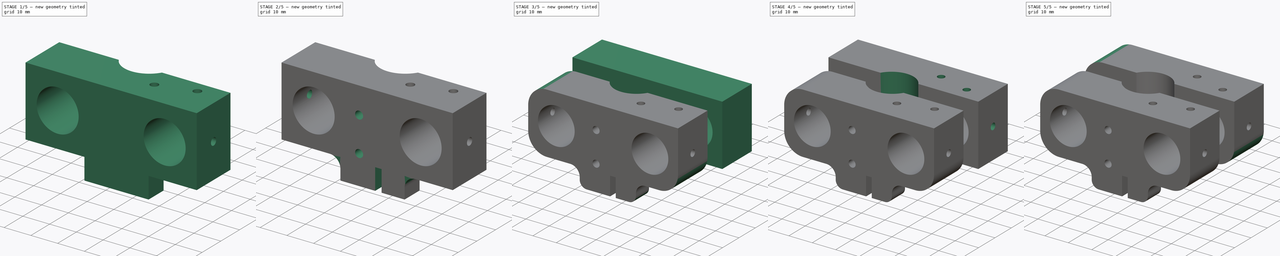
[diagram: build sequence overview — one tinted view per stage of 5, left to right]
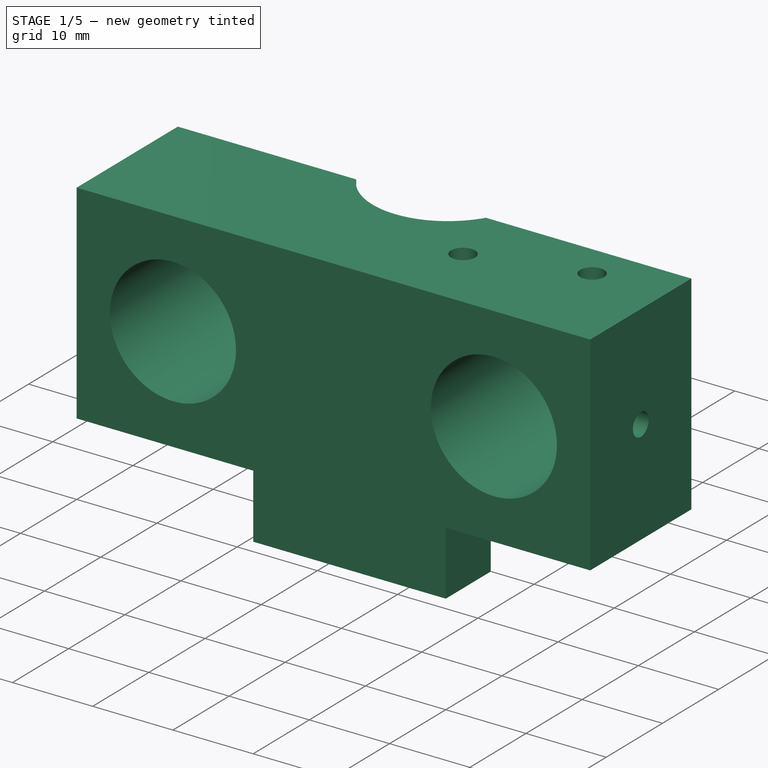
[diagram: stage 1 of 5 — iso view after this stage's code; geometry added in this stage tinted green]
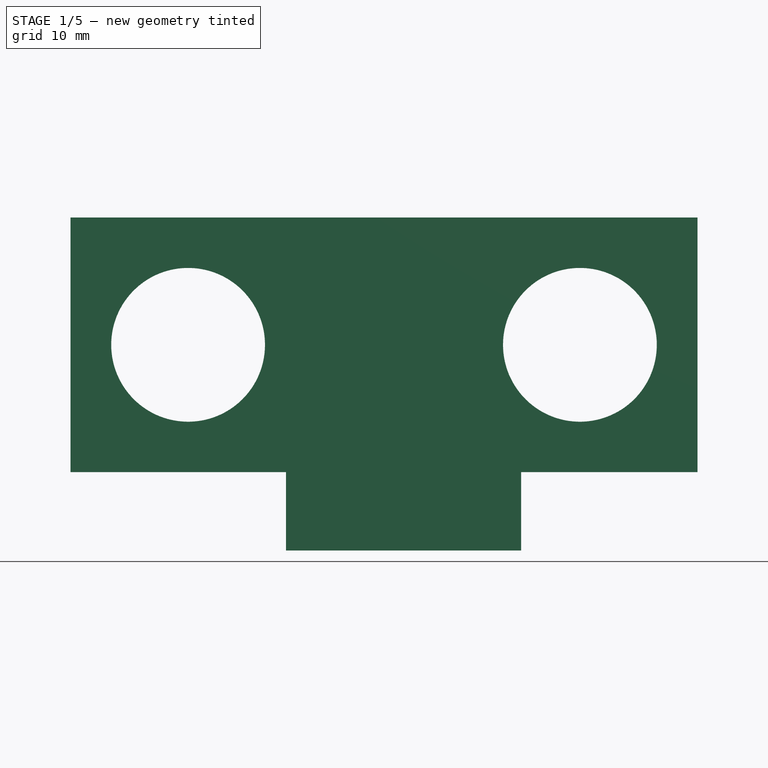
[diagram: stage 1 of 5 — front view after this stage's code; geometry added in this stage tinted green]
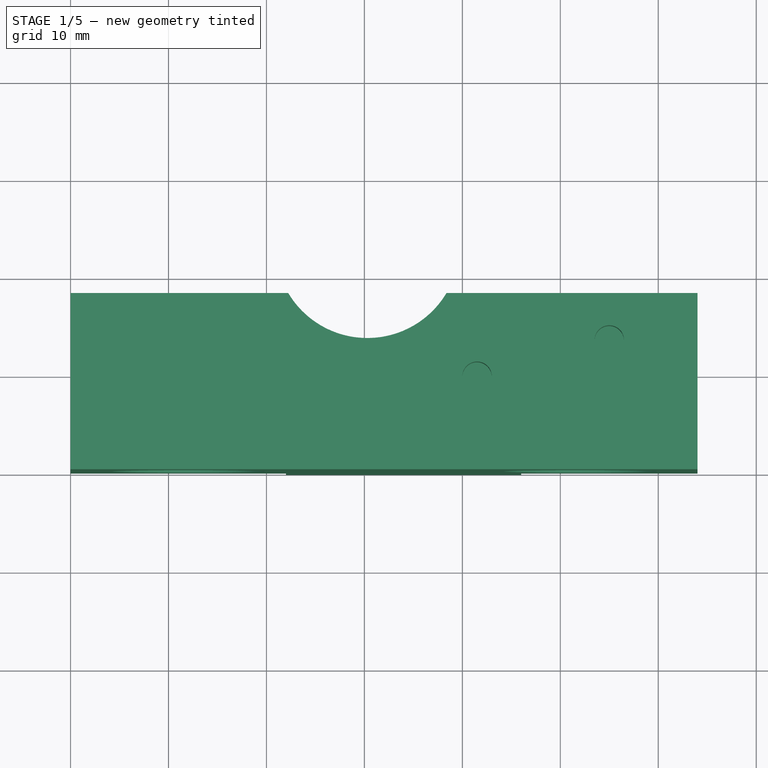
[diagram: stage 1 of 5 — top view after this stage's code; geometry added in this stage tinted green]
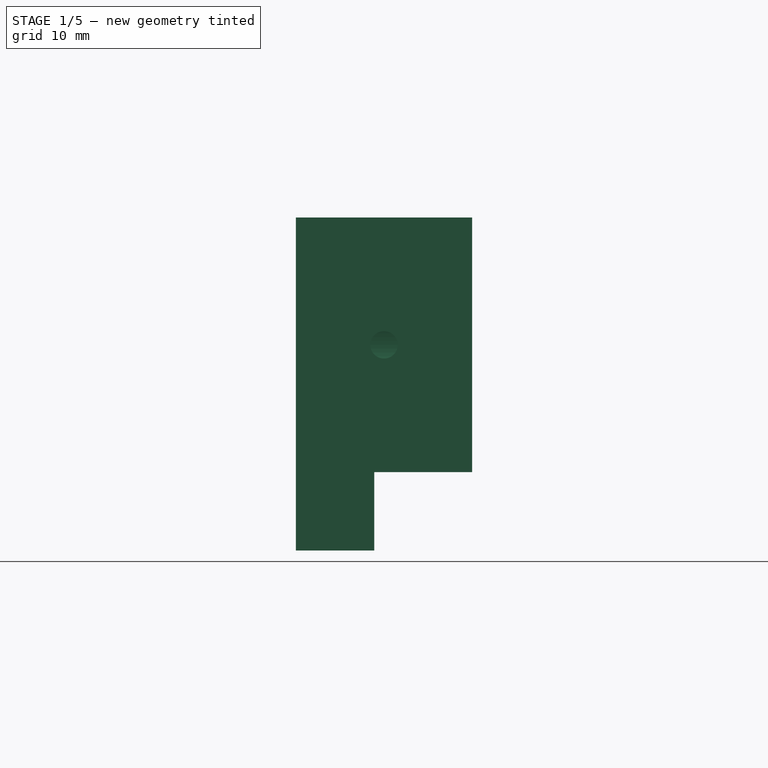
[diagram: stage 1 of 5 — right view after this stage's code; geometry added in this stage tinted green]
FCSTD DOCUMENT  (FreeCAD 0.16R6706 (Git))
Label: new-nozzle-cr
License: All rights reserved
LicenseURL: http://en.wikipedia.org/wiki/All_rights_reserved
objects: Sketcher::SketchObject×18, PartDesign::Pocket×16, PartDesign::Fillet×8, Part::Box×2, PartDesign::Pad×2, App::DocumentObjectGroup×2, Part::Feature×1
note: 65 computed .brp shape members not serialized (recipe doc carries the construction recipe); baked Part::Feature solids carry a one-line shape summary decoded from their .brp

FEATURE [Part::Box] Box  label="left"
  Height = 26
  Length = 64
  Width = 18
FEATURE [Sketcher::SketchObject] Sketch009  label="bearing cutoutL"
  Placement = pos=(0,0,0) rot=(1,0,0;1.5708rad)
  Support = -> Box [Face3]
  sketch-geometry (2):
    g0: Circle CenterX=12 CenterY=13 CenterZ=0 NormalX=0 NormalY=0 NormalZ=1 Radius=7.85
    g1: Circle CenterX=52 CenterY=13 CenterZ=0 NormalX=0 NormalY=0 NormalZ=1 Radius=7.85
  constraints (6):
    c: Equal(g1,g0)
    c: Radius(g0) = 7.85
    c: Distance(g0,g1) = 40
    c: DistanceY(g-1,g0) = 13
    c: DistanceY(g-1,g1) = 13
    c: DistanceX(g0) = 12
FEATURE [PartDesign::Pocket] Pocket  label="bearing cut L"
  Length = 5
  Sketch = -> Sketch009
  Type = 1
FEATURE [Sketcher::SketchObject] Sketch  label="left belt pad btm sk"
  Placement = pos=(0,0,0) rot=(1,0,0;3.14159rad)
  Support = -> Pocket [Face5]
  sketch-geometry (4):
    g0: LineSegment StartX=22 StartY=0 StartZ=0 EndX=46 EndY=0 EndZ=0
    g1: LineSegment StartX=46 StartY=0 StartZ=0 EndX=46 EndY=-8 EndZ=0
    g2: LineSegment StartX=46 StartY=-8 StartZ=0 EndX=22 EndY=-8 EndZ=0
    g3: LineSegment StartX=22 StartY=-8 StartZ=0 EndX=22 EndY=0 EndZ=0
  constraints (12):
    c: Coincident(g0,g1)
    c: Coincident(g1,g2)
    c: Coincident(g2,g3)
    c: Coincident(g3,g0)
    c: Horizontal(g0)
    c: Horizontal(g2)
    c: Vertical(g1)
    c: Vertical(g3)
    c: DistanceY(g0,g-1) = 0
    c: DistanceX(g0) = 22
    c: Distance(g2) = 24
    c: DistanceY(g1) = -8
FEATURE [PartDesign::Pad] Pad  label="left belt pad btm"
  Length = 8
  Length2 = 100
  Sketch = -> Sketch
  Type = 0
FEATURE [Sketcher::SketchObject] Sketch016  label="leveler hole r"
  Placement = pos=(0,0,26) rot=(0,0,1;0rad)
  Support = -> Pad [Face3]
  sketch-geometry (1):
    g0: Circle CenterX=30.3 CenterY=22.8 CenterZ=0 NormalX=0 NormalY=0 NormalZ=1 Radius=9.4
  constraints (3):
    c: Radius(g0) = 9.4
    c: DistanceX(g-2,g0) = 30.3
    c: DistanceY(g0) = 22.8
FEATURE [PartDesign::Pocket] Pocket002  label="leveler cut r"
  Length = 5
  Sketch = -> Sketch016
  Type = 1
FEATURE [Part::Feature] Part__Feature  label="plate"
  Placement = pos=(55,23,28) rot=(-1,0,0;1.5708rad)
  shape: bbox 38.1 x 38.1 x 2.286 mm, 52 faces (baked)
FEATURE [Sketcher::SketchObject] Sketch018  label="extruder mnt r sk"
  Placement = pos=(0,0,26) rot=(0,0,1;0rad)
  Support = -> Pocket002 [Face3]
  sketch-geometry (2):
    g0: Circle CenterX=41.5 CenterY=9.5 CenterZ=0 NormalX=0 NormalY=0 NormalZ=1 Radius=1.5
    g1: Circle CenterX=55 CenterY=13.2 CenterZ=0 NormalX=0 NormalY=0 NormalZ=1 Radius=1.5
  constraints (6):
    c: Radius(g0) = 1.5
    c: Equal(g0,g1)
    c: DistanceY(g0) = 9.5
    c: DistanceX(g0) = 41.5
    c: DistanceX(g1) = 55
    c: DistanceY(g1) = 13.2
FEATURE [PartDesign::Pocket] Pocket004  label="extruder mnt r"
  Length = 5
  Sketch = -> Sketch018
  Type = 0
FEATURE [Sketcher::SketchObject] Sketch020  label="mnt hole r1"
  Placement = pos=(64,0,0) rot=(0.57735,0.57735,0.57735;2.0944rad)
  Support = -> Pocket004 [Face7]
  sketch-geometry (1):
    g0: Circle CenterX=9 CenterY=13 CenterZ=0 NormalX=0 NormalY=0 NormalZ=1 Radius=1.4
  constraints (3):
    c: Radius(g0) = 1.4
    c: DistanceY(g0) = 13
    c: DistanceX(g0) = 9
FEATURE [PartDesign::Pocket] Pocket006  label="mnt hole r1 p"
  Length = 5
  Sketch = -> Sketch020
  Type = 0
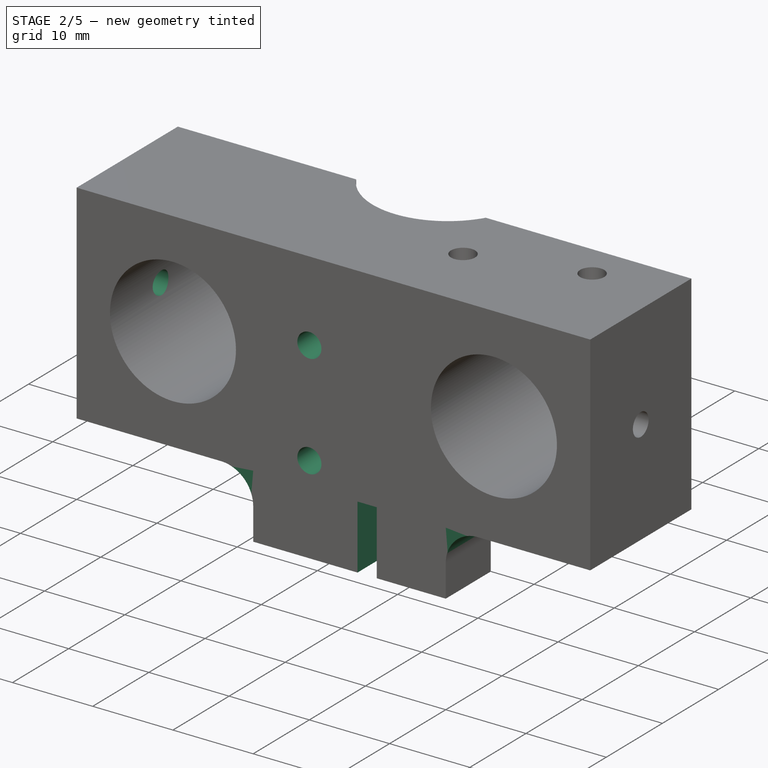
[diagram: stage 2 of 5 — iso view after this stage's code; geometry added in this stage tinted green]
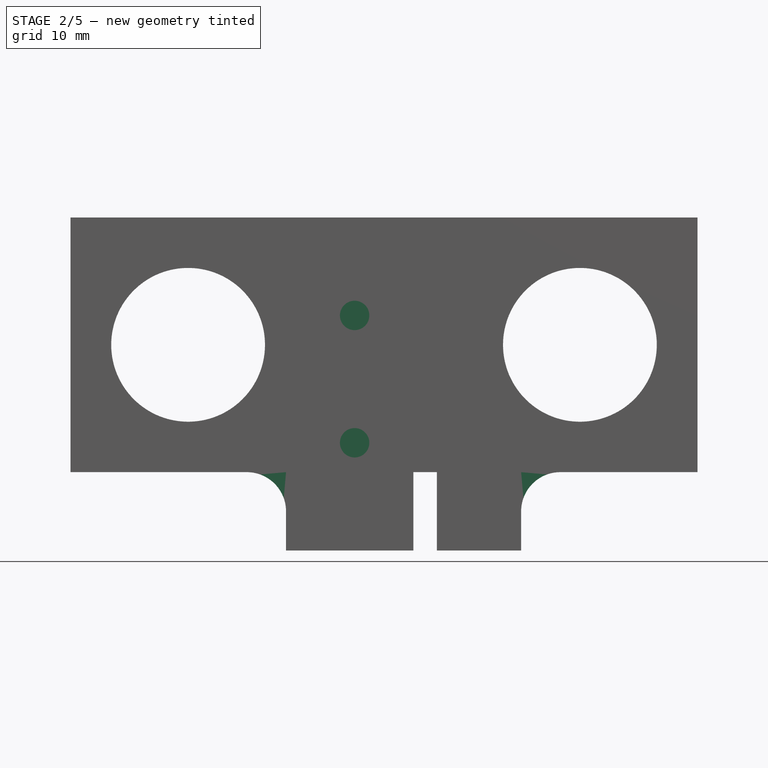
[diagram: stage 2 of 5 — front view after this stage's code; geometry added in this stage tinted green]
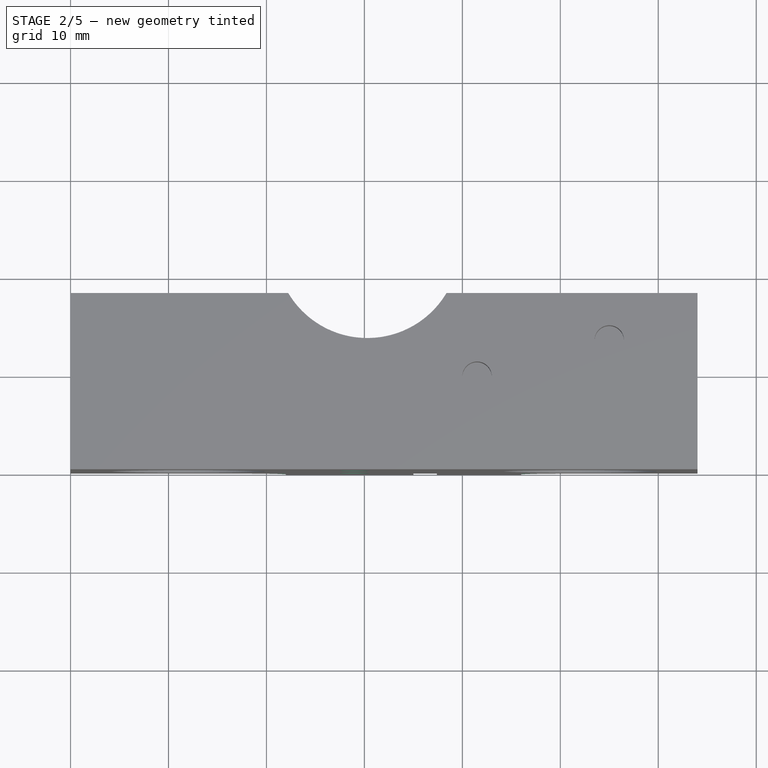
[diagram: stage 2 of 5 — top view after this stage's code; geometry added in this stage tinted green]
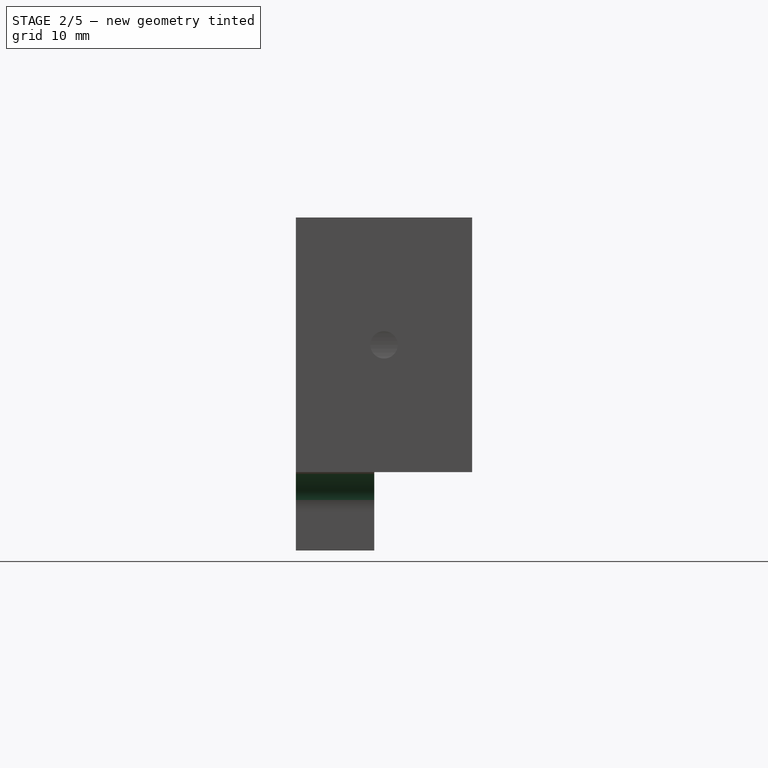
[diagram: stage 2 of 5 — right view after this stage's code; geometry added in this stage tinted green]
FEATURE [Sketcher::SketchObject] Sketch021  label="mnt hole r2"
  Placement = pos=(0,0,0) rot=(0.57735,-0.57735,-0.57735;2.0944rad)
  Support = -> Pocket006 [Face1]
  sketch-geometry (1):
    g0: Circle CenterX=-9 CenterY=13 CenterZ=0 NormalX=0 NormalY=0 NormalZ=1 Radius=1.4
  constraints (3):
    c: Radius(g0) = 1.4
    c: DistanceY(g0) = 13
    c: DistanceX(g0) = -9
FEATURE [PartDesign::Pocket] Pocket007  label="mnt hole r2 p"
  Length = 5
  Sketch = -> Sketch021
  Type = 0
FEATURE [Sketcher::SketchObject] Sketch026  label="belt loop hole r sk"
  Placement = pos=(0,0,0) rot=(1,0,0;3.14159rad)
  Support = -> Pocket007 [Face4]
  sketch-geometry (1):
    g0: Circle CenterX=38 CenterY=-11 CenterZ=0 NormalX=0 NormalY=0 NormalZ=1 Radius=1.4
  constraints (3):
    c: Radius(g0) = 1.4
    c: DistanceX(g0) = 38
    c: DistanceY(g0) = -11
FEATURE [PartDesign::Pocket] Pocket011  label="belt loop hole r"
  Length = 8
  Sketch = -> Sketch026
  Type = 0
FEATURE [Sketcher::SketchObject] Sketch027  label="belt mnt holes r sk"
  Placement = pos=(0,0,0) rot=(1,0,0;1.5708rad)
  Support = -> Pocket011 [Face2]
  sketch-geometry (2):
    g0: Circle CenterX=29 CenterY=3 CenterZ=0 NormalX=0 NormalY=0 NormalZ=1 Radius=1.5
    g1: Circle CenterX=29 CenterY=16 CenterZ=0 NormalX=0 NormalY=0 NormalZ=1 Radius=1.5
  constraints (6):
    c: Equal(g1,g0)
    c: Radius(g1) = 1.5
    c: DistanceX(g0) = 29
    c: DistanceX(g1) = 29
    c: DistanceY(g0) = 3
    c: DistanceY(g1) = 16
FEATURE [PartDesign::Pocket] Pocket012  label="belt mnt holes r"
  Length = 7.8
  Sketch = -> Sketch027
  Type = 0
FEATURE [App::DocumentObjectGroup] Group  label="left nz"
  Group = -> [Box,Pocket,Pad,Pocket003,Pocket005,Pocket008,Pocket009,Pocket010,Pocket013,Pocket014,Fillet,Fillet001,Fillet002,Fillet003]
FEATURE [Sketcher::SketchObject] Sketch029  label="belt cut sk r"
  Placement = pos=(0,0,0) rot=(1,0,0;1.5708rad)
  Support = -> Pocket012 [Face7]
  sketch-geometry (4):
    g0: LineSegment StartX=35 StartY=-8.92981 StartZ=0 EndX=37.4 EndY=-8.92981 EndZ=0
    g1: LineSegment StartX=37.4 StartY=-8.92981 StartZ=0 EndX=37.4 EndY=0 EndZ=0
    g2: LineSegment StartX=37.4 StartY=0 StartZ=0 EndX=35 EndY=0 EndZ=0
    g3: LineSegment StartX=35 StartY=0 StartZ=0 EndX=35 EndY=-8.92981 EndZ=0
  constraints (11):
    c: Coincident(g0,g1)
    c: Coincident(g1,g2)
    c: Coincident(g2,g3)
    c: Coincident(g3,g0)
    c: Horizontal(g0)
    c: Horizontal(g2)
    c: Vertical(g1)
    c: Vertical(g3)
    c: DistanceX(g1) = 37.4
    c: Distance(g0) = 2.4
    c: DistanceY(g1) = 0
FEATURE [PartDesign::Pocket] Pocket015  label="belt cut r"
  Length = 8
  Sketch = -> Sketch029
  Type = 0
FEATURE [PartDesign::Fillet] Fillet004
  Base = -> Pocket015 [Edge26,Edge30]
  Radius = 4
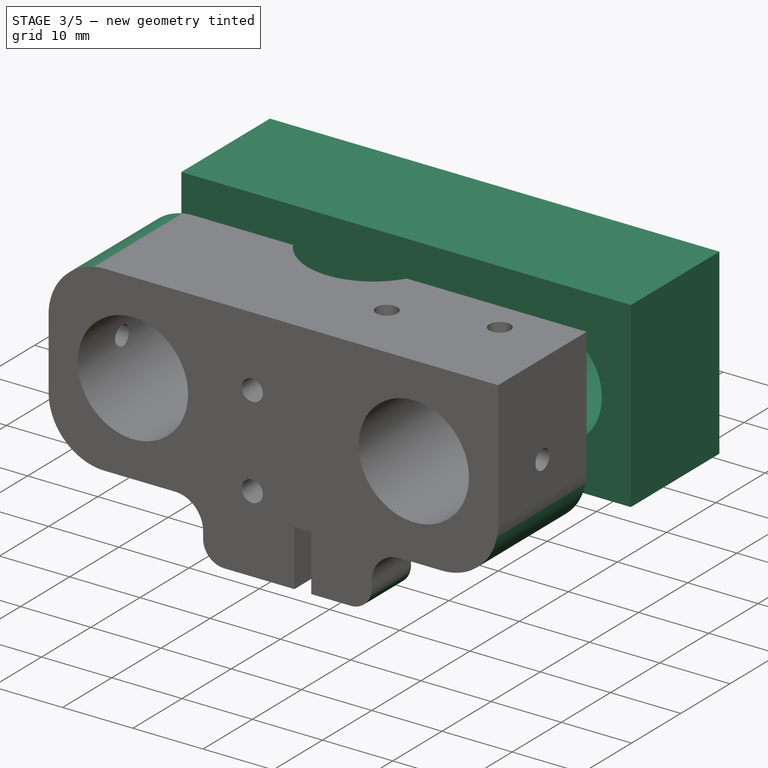
[diagram: stage 3 of 5 — iso view after this stage's code; geometry added in this stage tinted green]
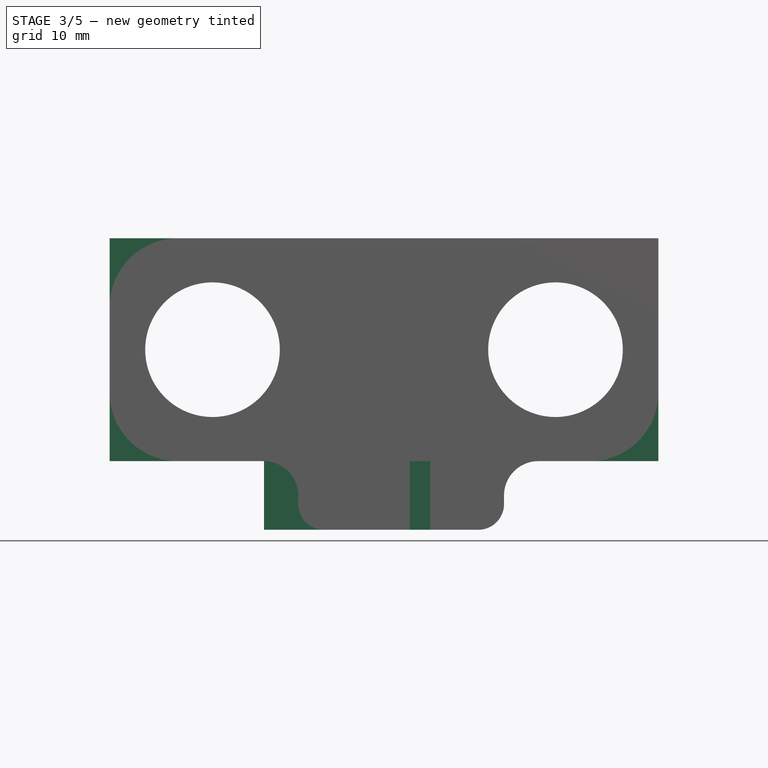
[diagram: stage 3 of 5 — front view after this stage's code; geometry added in this stage tinted green]
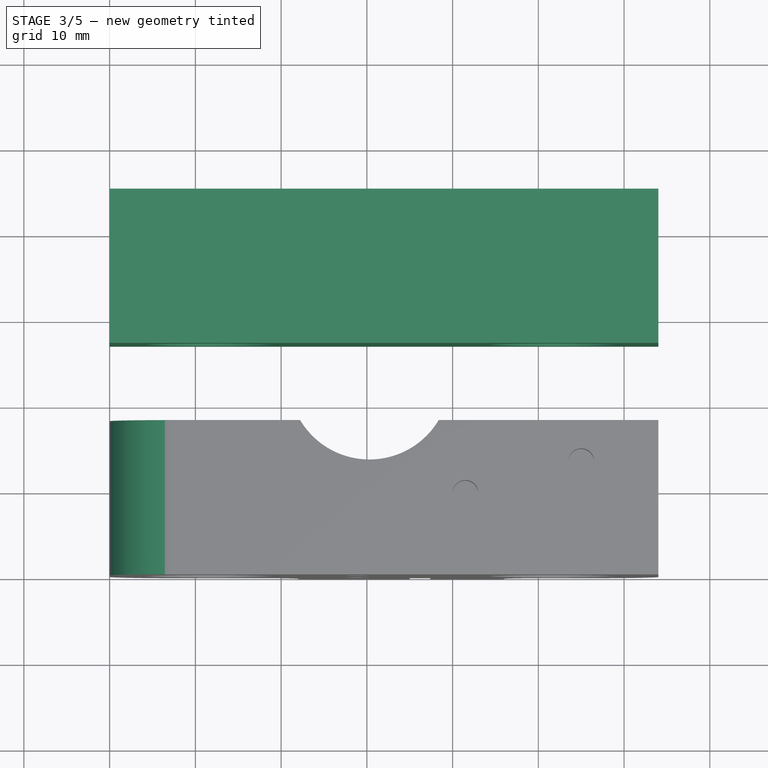
[diagram: stage 3 of 5 — top view after this stage's code; geometry added in this stage tinted green]
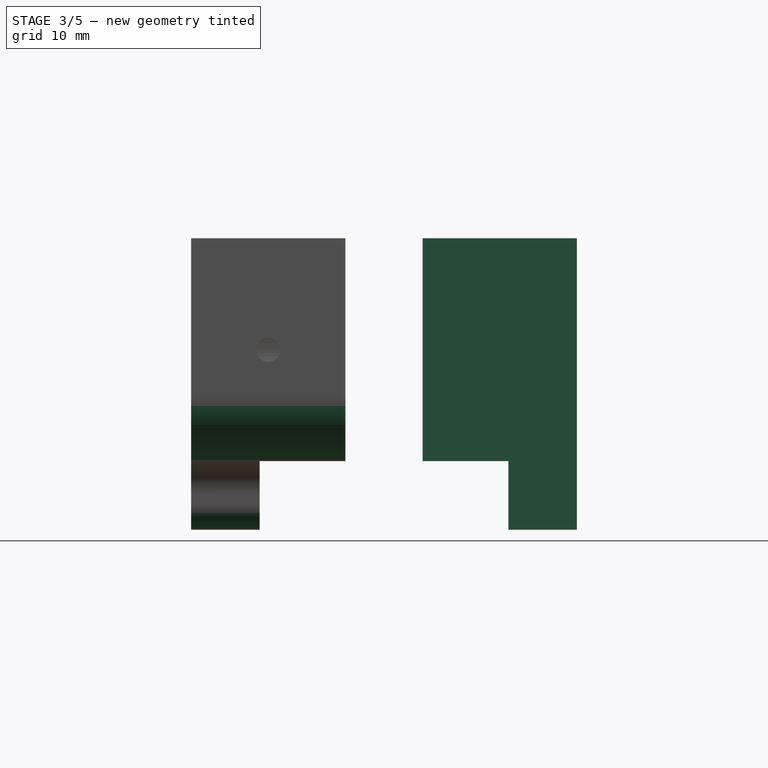
[diagram: stage 3 of 5 — right view after this stage's code; geometry added in this stage tinted green]
FEATURE [Part::Box] Box001  label="right"
  Height = 26
  Length = 64
  Placement = pos=(0,27,0) rot=(0,0,1;0rad)
  Width = 18
FEATURE [Sketcher::SketchObject] Sketch010  label="bearing cutoutR"
  Placement = pos=(0,27,0) rot=(1,0,0;1.5708rad)
  Support = -> Box001 [Face3]
  sketch-geometry (2):
    g0: Circle CenterX=12 CenterY=13 CenterZ=0 NormalX=0 NormalY=0 NormalZ=1 Radius=7.85
    g1: Circle CenterX=52 CenterY=13 CenterZ=0 NormalX=0 NormalY=0 NormalZ=1 Radius=7.85
  constraints (6):
    c: Equal(g1,g0)
    c: Radius(g0) = 7.85
    c: Distance(g0,g1) = 40
    c: DistanceY(g-1,g0) = 13
    c: DistanceY(g-1,g1) = 13
    c: DistanceX(g0) = 12
FEATURE [PartDesign::Pocket] Pocket001  label="bearing cut R"
  Length = 5
  Placement = pos=(0,27,0) rot=(0,0,1;0rad)
  Sketch = -> Sketch010
  Type = 1
FEATURE [Sketcher::SketchObject] Sketch011  label="right belt pad btm sk"
  Placement = pos=(0,27,0) rot=(1,0,0;3.14159rad)
  Support = -> Pocket001 [Face5]
  sketch-geometry (4):
    g0: LineSegment StartX=18 StartY=-18 StartZ=0 EndX=42 EndY=-18 EndZ=0
    g1: LineSegment StartX=42 StartY=-18 StartZ=0 EndX=42 EndY=-10 EndZ=0
    g2: LineSegment StartX=42 StartY=-10 StartZ=0 EndX=18 EndY=-10 EndZ=0
    g3: LineSegment StartX=18 StartY=-10 StartZ=0 EndX=18 EndY=-18 EndZ=0
  constraints (12):
    c: Coincident(g0,g1)
    c: Coincident(g1,g2)
    c: Coincident(g2,g3)
    c: Coincident(g3,g0)
    c: Horizontal(g0)
    c: Horizontal(g2)
    c: Vertical(g1)
    c: Vertical(g3)
    c: DistanceX(g0) = 18
    c: Distance(g2) = 24
    c: DistanceY(g2) = -10
    c: DistanceY(g0) = -18
FEATURE [PartDesign::Pad] Pad001  label="right belt pad btm"
  Length = 8
  Length2 = 100
  Placement = pos=(0,27,0) rot=(0,0,1;0rad)
  Sketch = -> Sketch011
  Type = 0
FEATURE [PartDesign::Fillet] Fillet005
  Base = -> Fillet004 [Edge89,Edge80]
  Radius = 3
FEATURE [PartDesign::Fillet] Fillet006
  Base = -> Fillet005 [Edge83]
  Radius = 1.5
FEATURE [PartDesign::Fillet] Fillet007
  Base = -> Fillet006 [Edge54,Edge14,Edge9]
  Radius = 8
FEATURE [App::DocumentObjectGroup] Group001  label="right nz"
  Group = -> [Box001,Pocket001,Pad001,Pocket002,Pocket004,Pocket006,Pocket007,Pocket011,Pocket012,Pocket015,Fillet004,Fillet005,Fillet006,Fillet007]
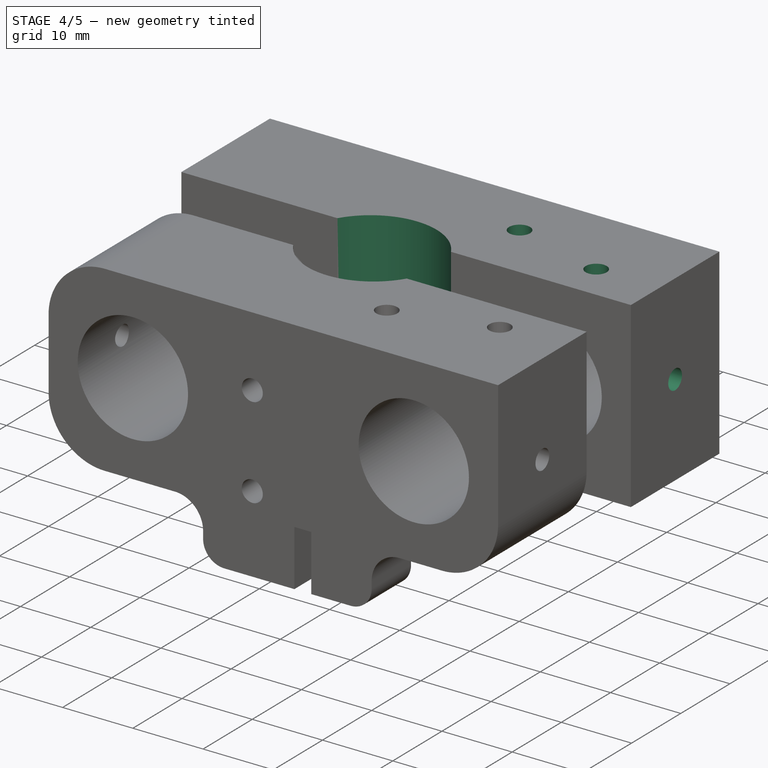
[diagram: stage 4 of 5 — iso view after this stage's code; geometry added in this stage tinted green]
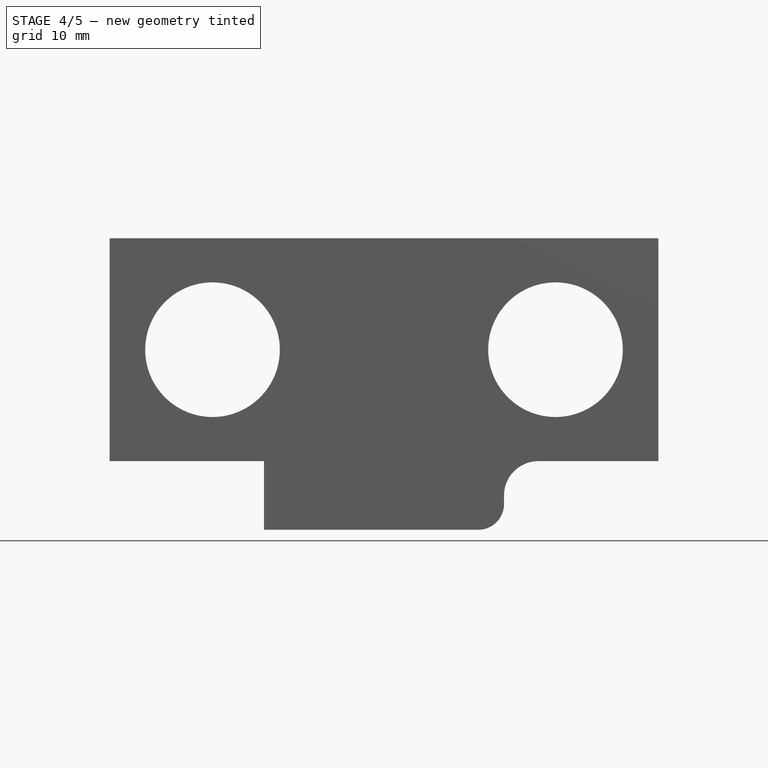
[diagram: stage 4 of 5 — front view after this stage's code; geometry added in this stage tinted green]
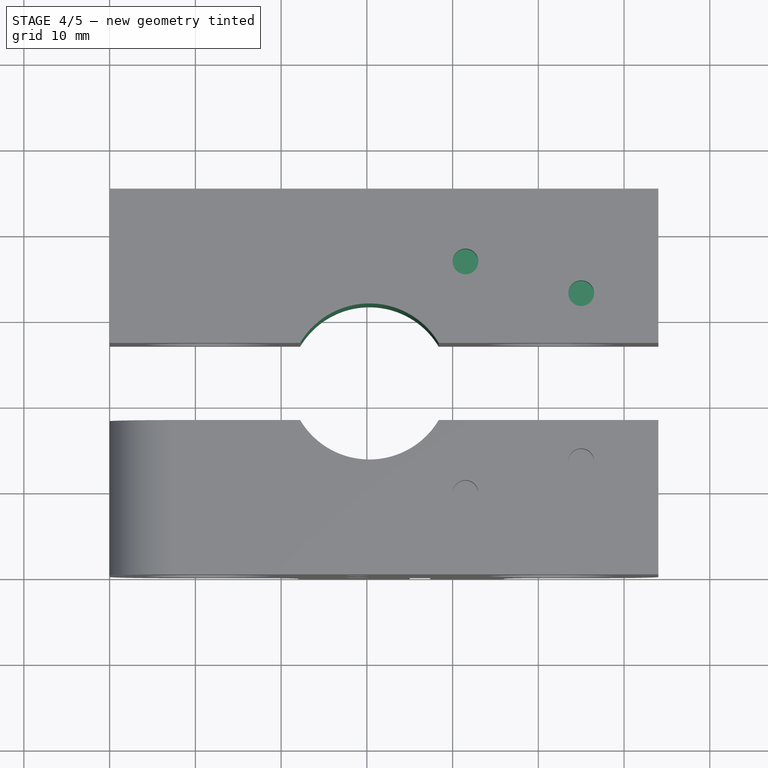
[diagram: stage 4 of 5 — top view after this stage's code; geometry added in this stage tinted green]
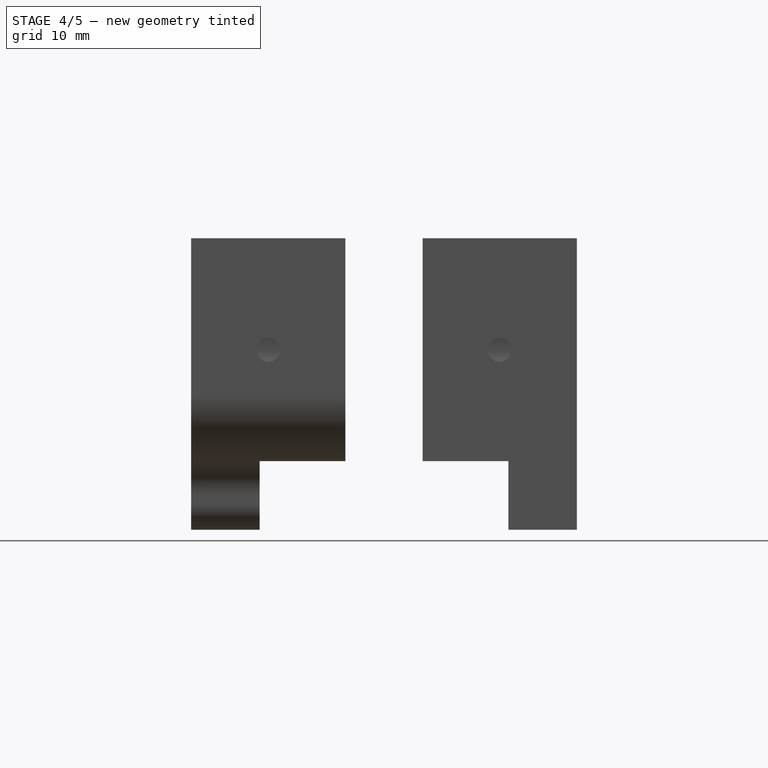
[diagram: stage 4 of 5 — right view after this stage's code; geometry added in this stage tinted green]
FEATURE [Sketcher::SketchObject] Sketch017  label="leveler hole l"
  Placement = pos=(0,27,26) rot=(0,0,1;0rad)
  Support = -> Pad001 [Face3]
  sketch-geometry (1):
    g0: Circle CenterX=30.3 CenterY=-4.8 CenterZ=0 NormalX=0 NormalY=0 NormalZ=1 Radius=9.4
  constraints (3):
    c: Radius(g0) = 9.4
    c: DistanceX(g-2,g0) = 30.3
    c: DistanceY(g0) = -4.8
FEATURE [PartDesign::Pocket] Pocket003  label="leveler cut l"
  Length = 5
  Placement = pos=(0,27,0) rot=(0,0,1;0rad)
  Sketch = -> Sketch017
  Type = 1
FEATURE [Sketcher::SketchObject] Sketch019  label="extruder mnt l sk"
  Placement = pos=(0,27,26) rot=(0,0,1;0rad)
  Support = -> Pocket003 [Face3]
  sketch-geometry (2):
    g0: Circle CenterX=41.5 CenterY=9.5 CenterZ=0 NormalX=0 NormalY=0 NormalZ=1 Radius=1.5
    g1: Circle CenterX=55 CenterY=5.8 CenterZ=0 NormalX=0 NormalY=0 NormalZ=1 Radius=1.5
  constraints (6):
    c: Radius(g0) = 1.5
    c: Equal(g0,g1)
    c: DistanceY(g0) = 9.5
    c: DistanceX(g0) = 41.5
    c: DistanceX(g1) = 55
    c: DistanceY(g1) = 5.8
FEATURE [PartDesign::Pocket] Pocket005  label="extruder mnt l"
  Length = 5
  Placement = pos=(0,27,0) rot=(0,0,1;0rad)
  Sketch = -> Sketch019
  Type = 0
FEATURE [Sketcher::SketchObject] Sketch022  label="mnt hole l 1"
  Placement = pos=(0,27,0) rot=(0.57735,-0.57735,-0.57735;2.0944rad)
  Support = -> Pocket005 [Face1]
  sketch-geometry (1):
    g0: Circle CenterX=-9 CenterY=13 CenterZ=0 NormalX=0 NormalY=0 NormalZ=1 Radius=1.4
  constraints (3):
    c: Radius(g0) = 1.4
    c: DistanceY(g0) = 13
    c: DistanceX(g0) = -9
FEATURE [PartDesign::Pocket] Pocket008  label="mnt hole l 1 p"
  Length = 5
  Placement = pos=(0,27,0) rot=(0,0,1;0rad)
  Sketch = -> Sketch022
  Type = 0
FEATURE [Sketcher::SketchObject] Sketch023  label="mnt hole 1 2"
  Placement = pos=(64,27,0) rot=(0.57735,0.57735,0.57735;2.0944rad)
  Support = -> Pocket008 [Face9]
  sketch-geometry (1):
    g0: Circle CenterX=9 CenterY=13 CenterZ=0 NormalX=0 NormalY=0 NormalZ=1 Radius=1.4
  constraints (3):
    c: Radius(g0) = 1.4
    c: DistanceY(g0) = 13
    c: DistanceX(g0) = 9
FEATURE [PartDesign::Pocket] Pocket009  label="mnt hole 1 2 p"
  Length = 5
  Placement = pos=(0,27,0) rot=(0,0,1;0rad)
  Sketch = -> Sketch023
  Type = 0
FEATURE [Sketcher::SketchObject] Sketch025  label="belt loop hole l sk"
  Placement = pos=(0,27,0) rot=(1,0,0;3.14159rad)
  Support = -> Pocket009 [Face4]
  sketch-geometry (1):
    g0: Circle CenterX=26 CenterY=-7 CenterZ=0 NormalX=0 NormalY=0 NormalZ=1 Radius=1.4
  constraints (3):
    c: Radius(g0) = 1.4
    c: DistanceX(g0) = 26
    c: DistanceY(g0) = -7
FEATURE [PartDesign::Pocket] Pocket010  label="belt loop hole l"
  Length = 8
  Placement = pos=(0,27,0) rot=(0,0,1;0rad)
  Sketch = -> Sketch025
  Type = 0
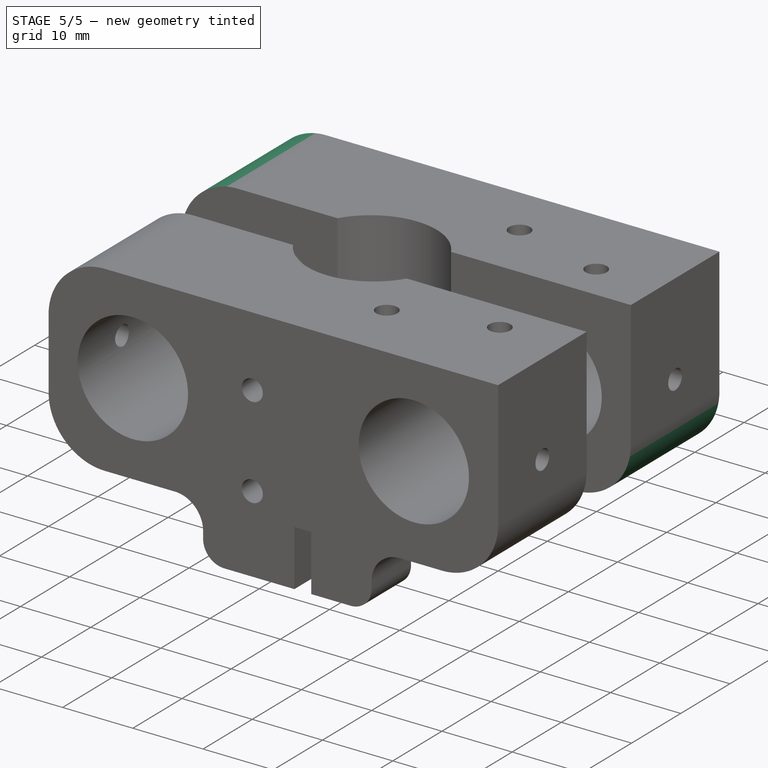
[diagram: stage 5 of 5 — iso view after this stage's code; geometry added in this stage tinted green]
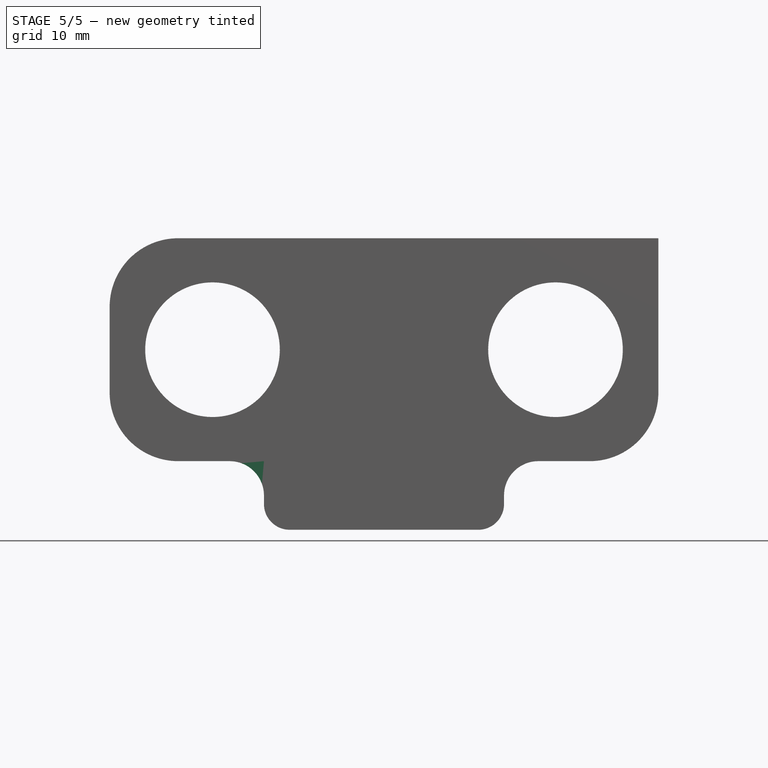
[diagram: stage 5 of 5 — front view after this stage's code; geometry added in this stage tinted green]
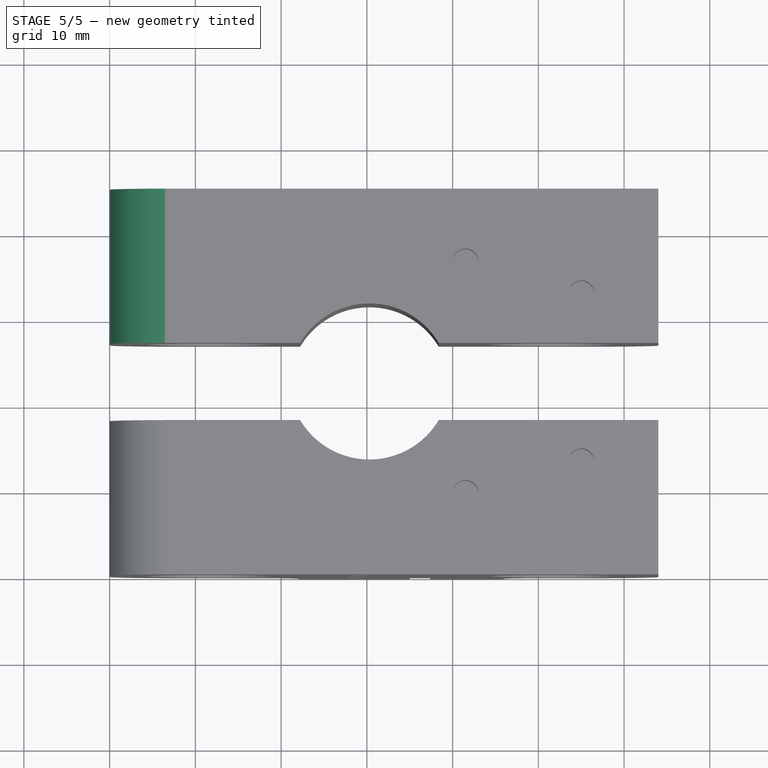
[diagram: stage 5 of 5 — top view after this stage's code; geometry added in this stage tinted green]
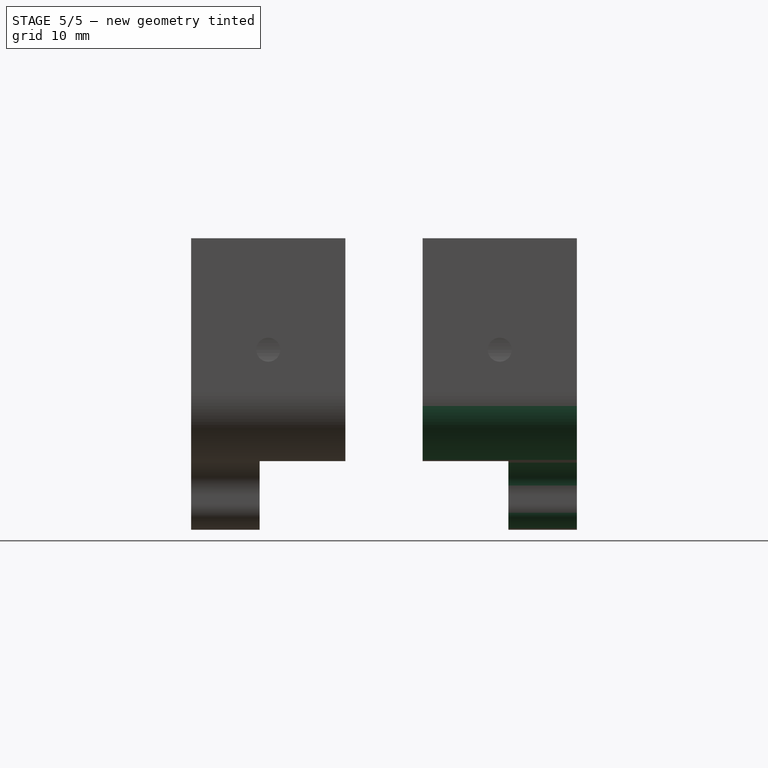
[diagram: stage 5 of 5 — right view after this stage's code; geometry added in this stage tinted green]
FEATURE [Sketcher::SketchObject] Sketch028  label="belt mnt holes l sk"
  Placement = pos=(0,45,0) rot=(0,0.707107,0.707107;3.14159rad)
  Support = -> Pocket010 [Face5]
  sketch-geometry (2):
    g0: Circle CenterX=-35 CenterY=3 CenterZ=0 NormalX=0 NormalY=0 NormalZ=1 Radius=1.5
    g1: Circle CenterX=-35 CenterY=16 CenterZ=0 NormalX=0 NormalY=0 NormalZ=1 Radius=1.5
  constraints (6):
    c: Equal(g1,g0)
    c: Radius(g1) = 1.5
    c: DistanceX(g0) = -35
    c: DistanceX(g1) = -35
    c: DistanceY(g0) = 3
    c: DistanceY(g1) = 16
FEATURE [PartDesign::Pocket] Pocket013  label="belt mnt holes l"
  Length = 7.8
  Placement = pos=(0,27,0) rot=(0,0,1;0rad)
  Sketch = -> Sketch028
  Type = 0
FEATURE [Sketcher::SketchObject] Sketch024  label="belt cut sk l"
  Placement = pos=(0,45,0) rot=(0,0.707107,0.707107;3.14159rad)
  Support = -> Pocket013 [Face17]
  sketch-geometry (4):
    g0: LineSegment StartX=-29 StartY=-8.92981 StartZ=0 EndX=-26.6 EndY=-8.92981 EndZ=0
    g1: LineSegment StartX=-26.6 StartY=-8.92981 StartZ=0 EndX=-26.6 EndY=0 EndZ=0
    g2: LineSegment StartX=-26.6 StartY=0 StartZ=0 EndX=-29 EndY=0 EndZ=0
    g3: LineSegment StartX=-29 StartY=0 StartZ=0 EndX=-29 EndY=-8.92981 EndZ=0
  constraints (11):
    c: Coincident(g0,g1)
    c: Coincident(g1,g2)
    c: Coincident(g2,g3)
    c: Coincident(g3,g0)
    c: Horizontal(g0)
    c: Horizontal(g2)
    c: Vertical(g1)
    c: Vertical(g3)
    c: DistanceX(g1) = -26.6
    c: Distance(g0) = 2.4
    c: DistanceY(g1) = 0
FEATURE [PartDesign::Pocket] Pocket014  label="belt cut l"
  Length = 8
  Placement = pos=(0,27,0) rot=(0,0,1;0rad)
  Sketch = -> Sketch024
  Type = 0
FEATURE [PartDesign::Fillet] Fillet
  Base = -> Pocket014 [Edge17,Edge24]
  Placement = pos=(0,27,0) rot=(0,0,1;0rad)
  Radius = 4
FEATURE [PartDesign::Fillet] Fillet001
  Base = -> Fillet [Edge84,Edge80]
  Placement = pos=(0,27,0) rot=(0,0,1;0rad)
  Radius = 3
FEATURE [PartDesign::Fillet] Fillet002
  Base = -> Fillet001 [Edge6]
  Placement = pos=(0,27,0) rot=(0,0,1;0rad)
  Radius = 1.5
FEATURE [PartDesign::Fillet] Fillet003
  Base = -> Fillet002 [Edge27,Edge54,Edge22]
  Placement = pos=(0,27,0) rot=(0,0,1;0rad)
  Radius = 8
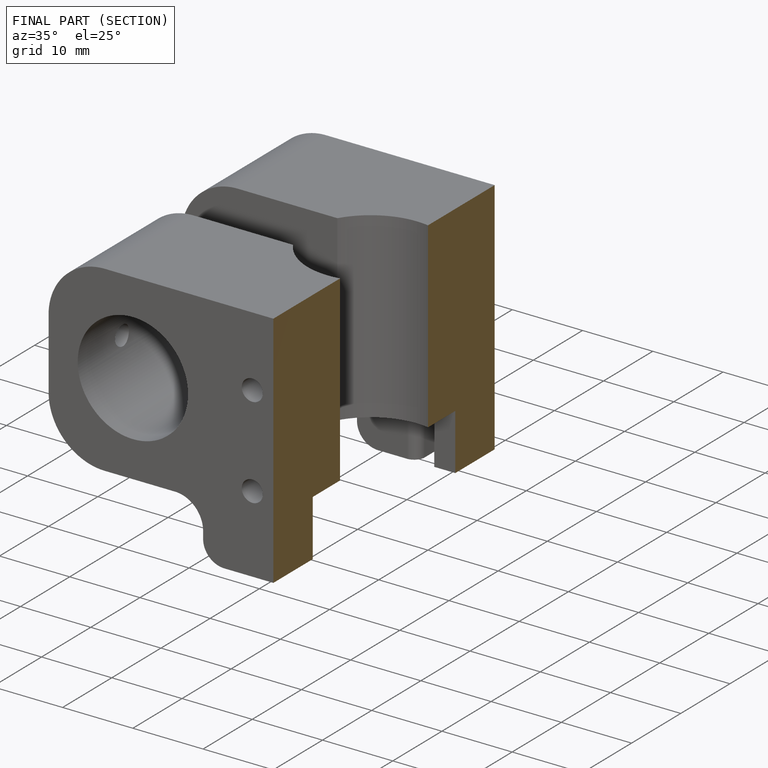
[diagram: finished part — half-section view (interior)]
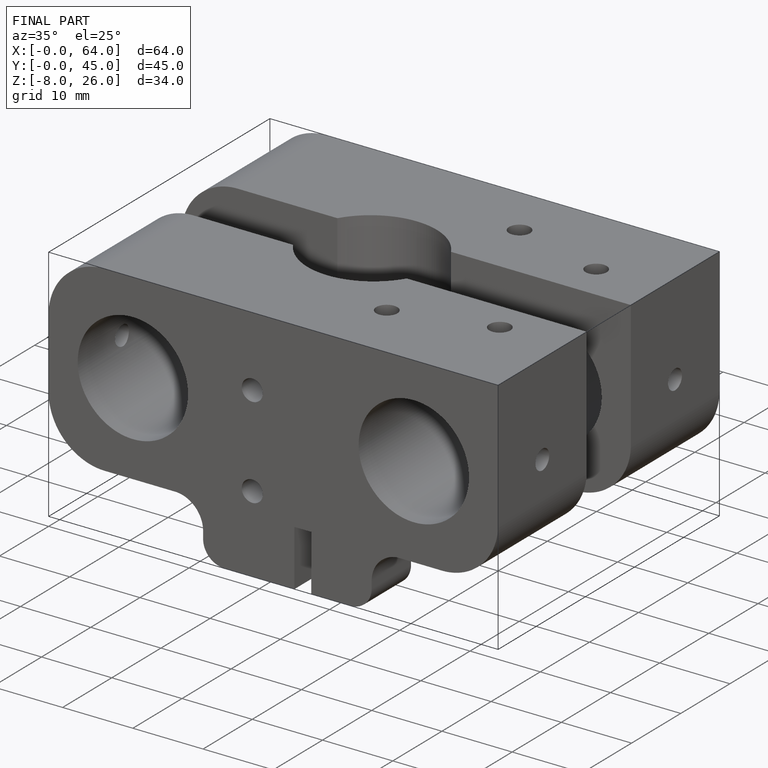
[diagram: finished part — iso view with bounding-box wireframe]
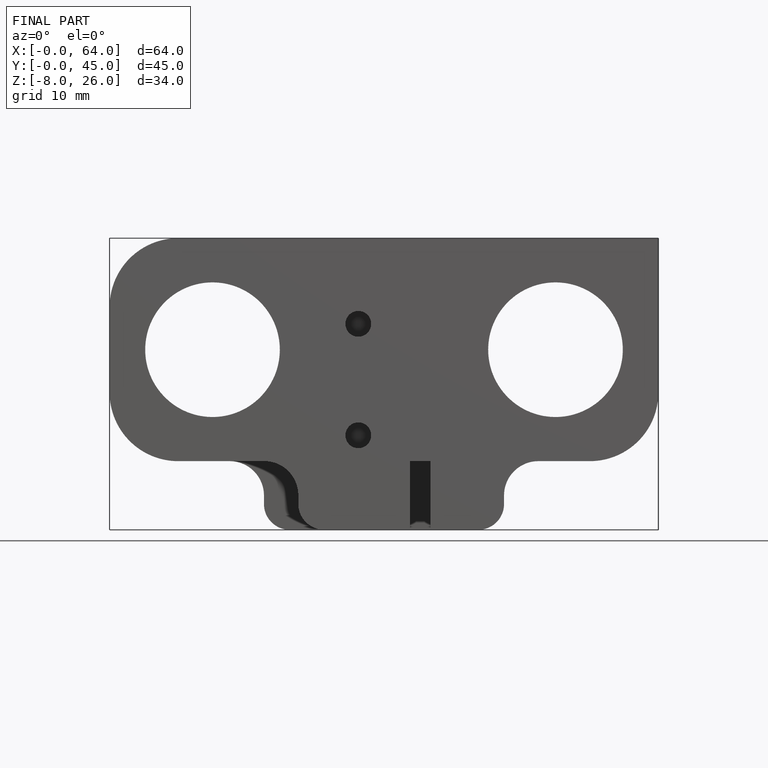
[diagram: finished part — front view with bounding-box wireframe]
